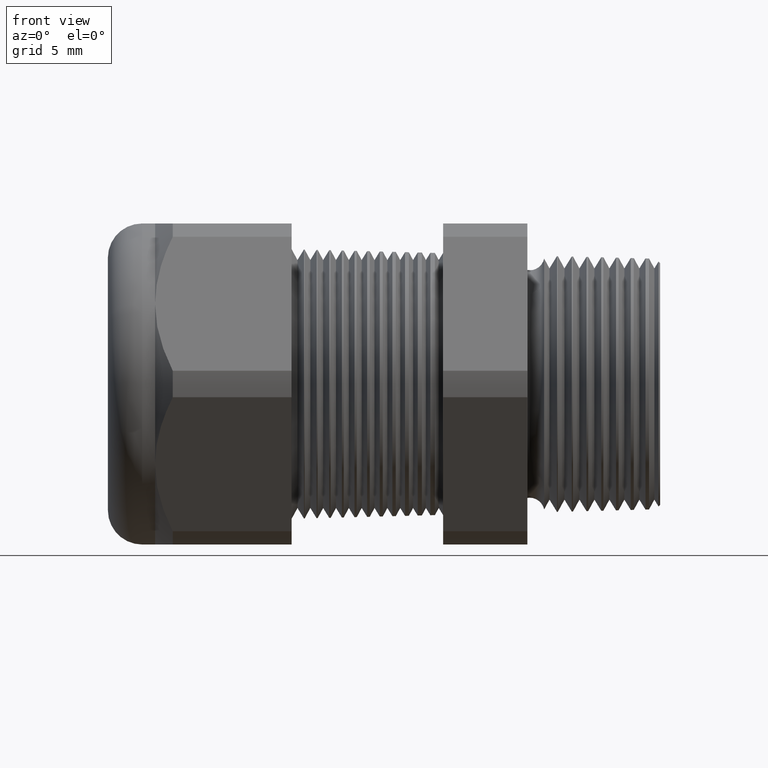
[diagram: clean part render]
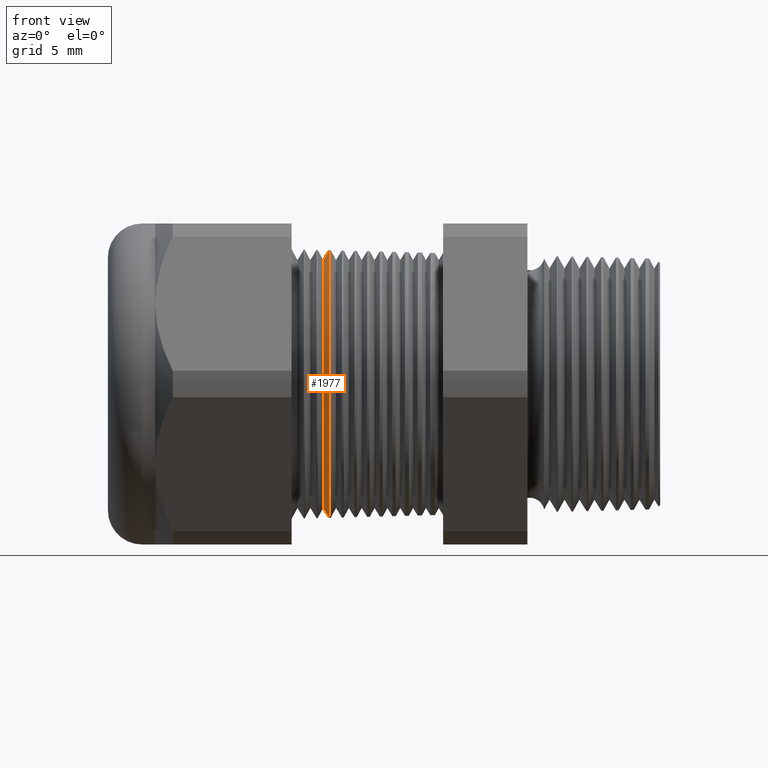
[diagram: same view with one face highlighted and labeled with its STEP entity id]
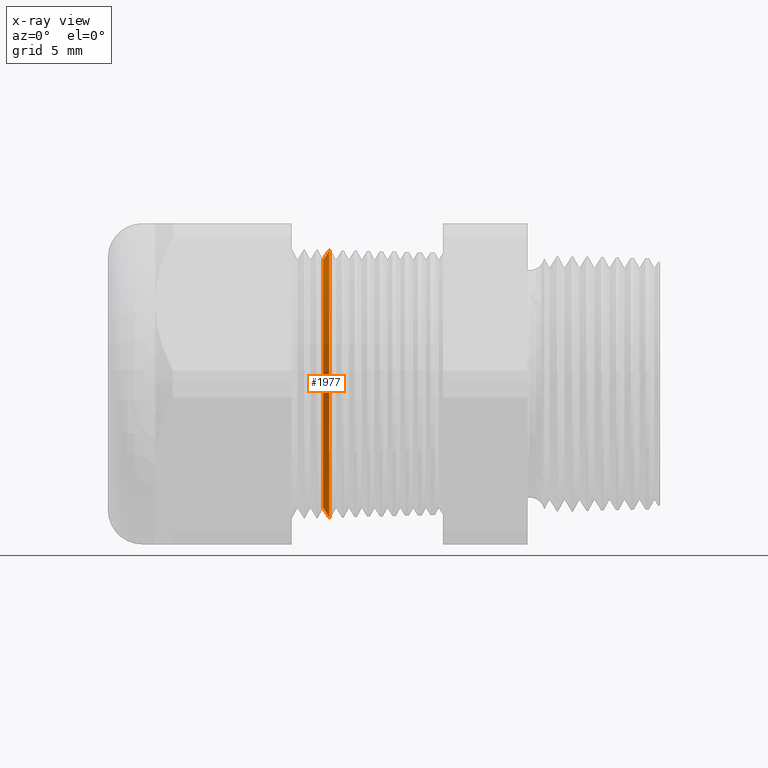
[diagram: x-ray of the same camera — body ghosted, the highlighted face saturated]
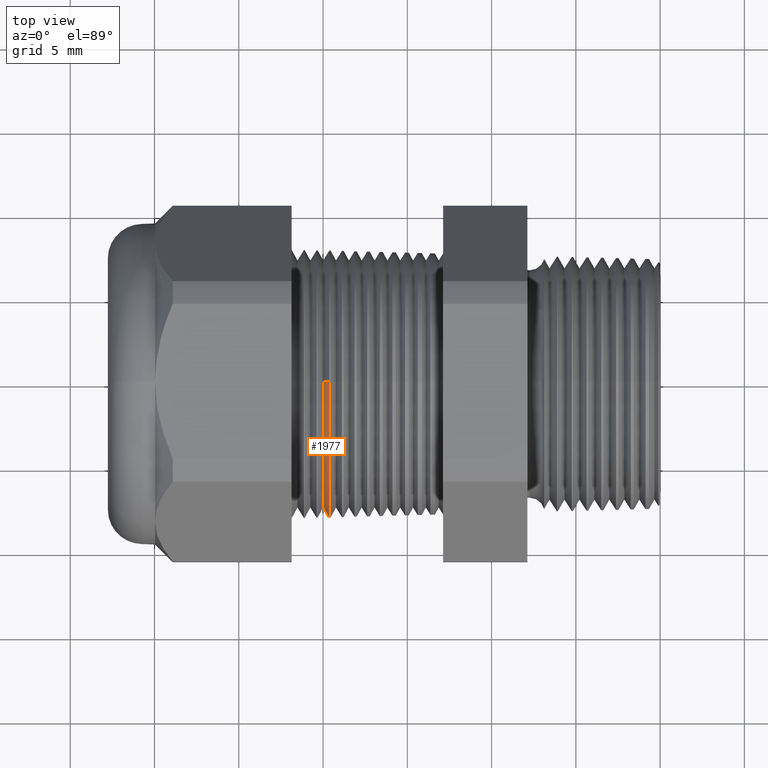
[diagram: same view with one face highlighted and labeled with its STEP entity id]
A machine part, front view. The second image highlights one B-rep face of the part: STEP entity #1977.
The next image is the same camera in x-ray: the body ghosted, the highlighted face saturated — about 0% of this face is hidden behind the body in this view.
A second angle (top view) of the same face is appended — the face is thin or edge-on in the first view.
In plain terms, the highlighted conical surface has half-angle 58.5 deg.
Its self-contained STEP definition (entity closure, byte-faithful):
#1230 = EDGE_CURVE ( 'NONE', #1487, #1484, #2994, .T. ) ;
#1483 = EDGE_CURVE ( 'NONE', #1563, #1484, #3509, .T. ) ;
#1484 = VERTEX_POINT ( 'NONE', #3505 ) ;
#1487 = VERTEX_POINT ( 'NONE', #3499 ) ;
#1489 = EDGE_CURVE ( 'NONE', #1509, #1487, #3498, .T. ) ;
#1509 = VERTEX_POINT ( 'NONE', #3580 ) ;
#1563 = VERTEX_POINT ( 'NONE', #3660 ) ;
#1977 = ADVANCED_FACE ( 'NONE', ( #4366 ), #4365, .T. ) ;
#1978 = EDGE_LOOP ( 'NONE', ( #1979, #1980, #1982, #1984 ) ) ;
#1979 = ORIENTED_EDGE ( 'NONE', *, *, #1483, .F. ) ;
#1980 = ORIENTED_EDGE ( 'NONE', *, *, #2001, .T. ) ;
#1982 = ORIENTED_EDGE ( 'NONE', *, *, #1489, .T. ) ;
#1984 = ORIENTED_EDGE ( 'NONE', *, *, #1230, .T. ) ;
#2001 = EDGE_CURVE ( 'NONE', #1563, #1509, #4458, .T. ) ;
#2994 = CIRCLE ( 'NONE', #3047, 0.3126979950594575600 ) ;
#3044 = DIRECTION ( 'NONE',  ( 0.0000000000000000000, 0.0000000000000000000, -1.000000000000000000 ) ) ;
#3045 = DIRECTION ( 'NONE',  ( -1.000000000000000000, 0.0000000000000000000, 0.0000000000000000000 ) ) ;
#3046 = CARTESIAN_POINT ( 'NONE',  ( -0.7729561197588027400, 0.0000000000000000000, 0.0000000000000000000 ) ) ;
#3047 = AXIS2_PLACEMENT_3D ( 'NONE', #3046, #3045, #3044 ) ;
#3495 = DIRECTION ( 'NONE',  ( 0.5224985647159348100, 0.0000000000000000000, -0.8526401643541007300 ) ) ;
#3496 = VECTOR ( 'NONE', #3495, 39.37007874015748900 ) ;
#3497 = CARTESIAN_POINT ( 'NONE',  ( -0.7870917547981792800, 0.0000000000000000000, -0.2896307351718082600 ) ) ;
#3498 = LINE ( 'NONE', #3497, #3496 ) ;
#3499 = CARTESIAN_POINT ( 'NONE',  ( -0.7729561197588027400, 3.829445987493595200E-017, -0.3126979950594575600 ) ) ;
#3505 = CARTESIAN_POINT ( 'NONE',  ( -0.7729561197588027400, 0.0000000000000000000, 0.3126979950594575600 ) ) ;
#3506 = DIRECTION ( 'NONE',  ( 0.5224985647159348100, 1.044183048100722500E-016, 0.8526401643541007300 ) ) ;
#3507 = VECTOR ( 'NONE', #3506, 39.37007874015748900 ) ;
#3508 = CARTESIAN_POINT ( 'NONE',  ( -0.7870917547981792800, 3.546953527628497700E-017, 0.2896307351718082600 ) ) ;
#3509 = LINE ( 'NONE', #3508, #3507 ) ;
#3580 = CARTESIAN_POINT ( 'NONE',  ( -0.7870917547981792800, 3.692536165126864400E-017, -0.2896307351718082600 ) ) ;
#3660 = CARTESIAN_POINT ( 'NONE',  ( -0.7870917547981792800, 0.0000000000000000000, 0.2896307351718082600 ) ) ;
#4365 = CONICAL_SURFACE ( 'NONE', #4426, 0.2896307351718082600, 1.021017612416699200 ) ;
#4366 = FACE_OUTER_BOUND ( 'NONE', #1978, .T. ) ;
#4422 = DIRECTION ( 'NONE',  ( 0.0000000000000000000, 0.0000000000000000000, -1.000000000000000000 ) ) ;
#4423 = DIRECTION ( 'NONE',  ( 1.000000000000000000, 0.0000000000000000000, 0.0000000000000000000 ) ) ;
#4424 = CARTESIAN_POINT ( 'NONE',  ( -0.7870917547981792800, 0.0000000000000000000, 0.0000000000000000000 ) ) ;
#4426 = AXIS2_PLACEMENT_3D ( 'NONE', #4424, #4423, #4422 ) ;
#4451 = DIRECTION ( 'NONE',  ( 0.0000000000000000000, 0.0000000000000000000, -1.000000000000000000 ) ) ;
#4452 = DIRECTION ( 'NONE',  ( 1.000000000000000000, 0.0000000000000000000, 0.0000000000000000000 ) ) ;
#4453 = CARTESIAN_POINT ( 'NONE',  ( -0.7870917547981792800, 0.0000000000000000000, 0.0000000000000000000 ) ) ;
#4454 = AXIS2_PLACEMENT_3D ( 'NONE', #4453, #4452, #4451 ) ;
#4458 = CIRCLE ( 'NONE', #4454, 0.2896307351718082600 ) ;